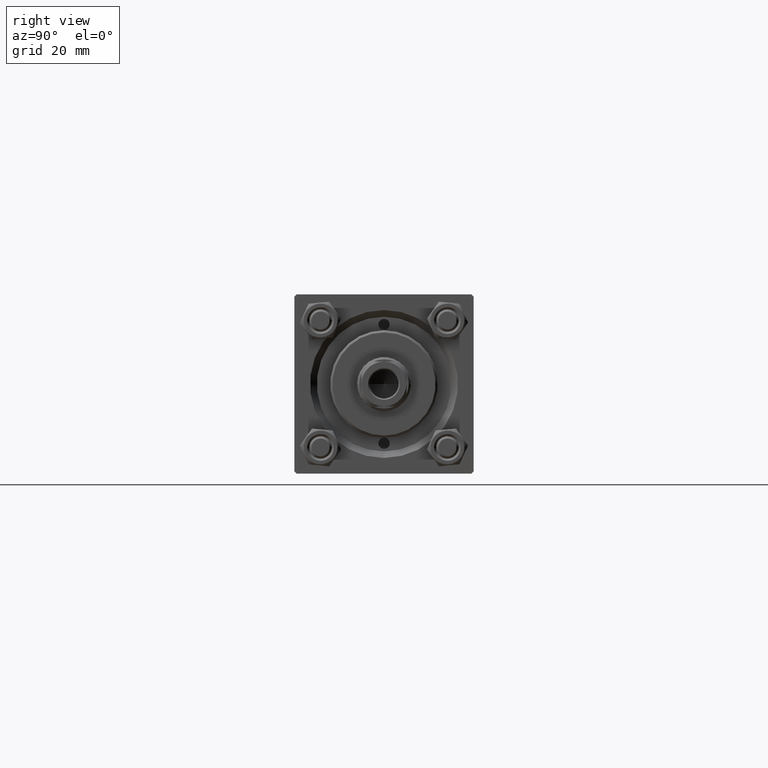
[diagram: clean part render]
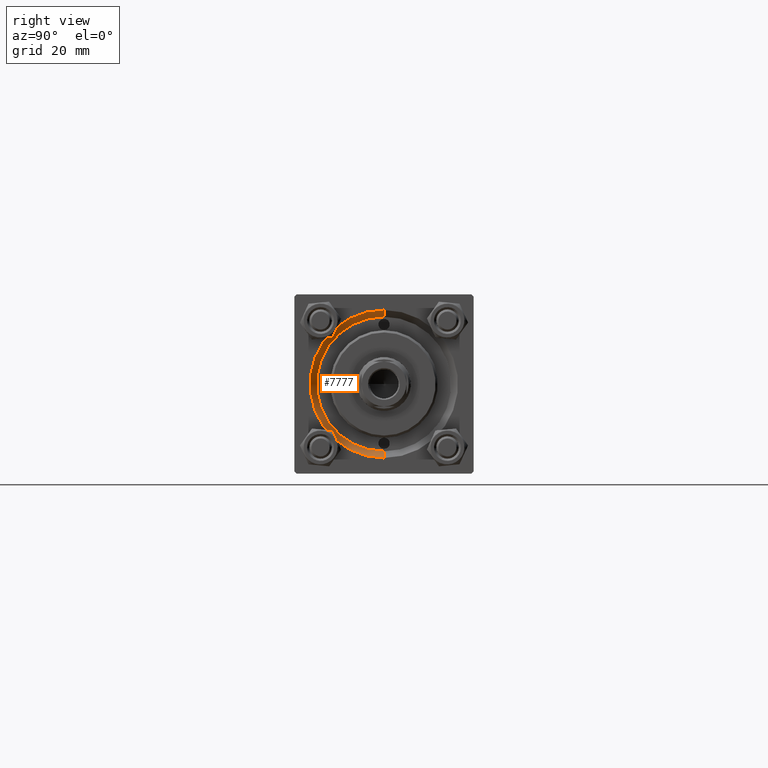
[diagram: same view with one face highlighted and labeled with its STEP entity id]
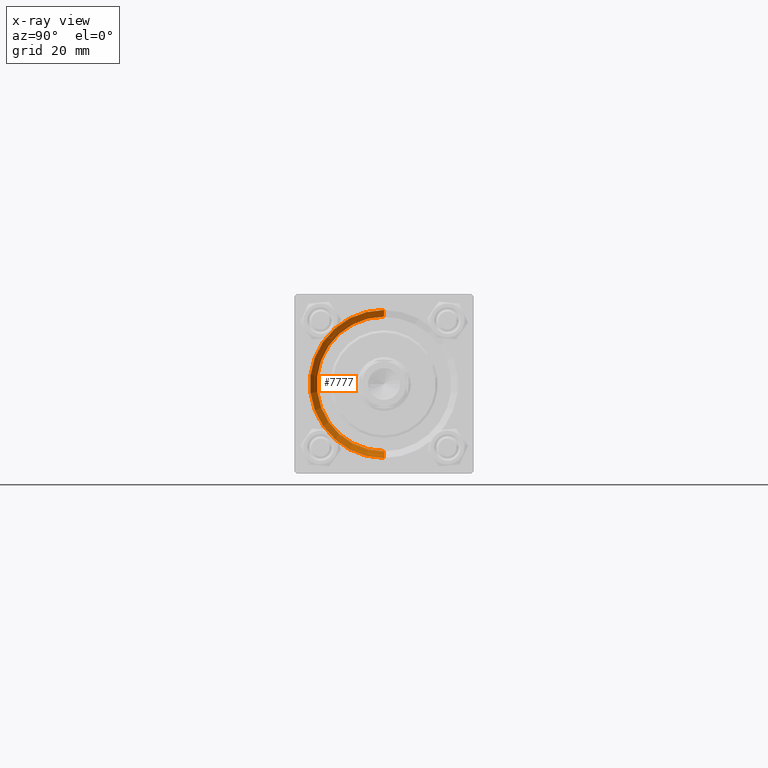
[diagram: x-ray of the same camera — body ghosted, the highlighted face saturated]
A machine part, right view. The second image highlights one B-rep face of the part: STEP entity #7777.
The next image is the same camera in x-ray: the body ghosted, the highlighted face saturated — about 0% of this face is hidden behind the body in this view.
In plain terms, the highlighted conical surface has half-angle 45 deg.
Its self-contained STEP definition (entity closure, byte-faithful):
#206 = CIRCLE ( 'NONE', #26023, 16.50000000000001421 ) ;
#527 = EDGE_CURVE ( 'NONE', #8945, #36079, #206, .T. ) ;
#3371 = DIRECTION ( 'NONE',  ( 0.7071067811865474617, 8.659560562354932858E-17, 0.7071067811865474617 ) ) ;
#6053 = CARTESIAN_POINT ( 'NONE',  ( 117.5000000000000000, 0.000000000000000000, -15.00000000000000000 ) ) ;
#6214 = CARTESIAN_POINT ( 'NONE',  ( 117.5000000000000000, 0.000000000000000000, 0.000000000000000000 ) ) ;
#6705 = DIRECTION ( 'NONE',  ( 1.000000000000000000, 0.000000000000000000, 0.000000000000000000 ) ) ;
#6909 = CARTESIAN_POINT ( 'NONE',  ( 117.5000000000000000, 1.836970198721029589E-15, 15.00000000000000000 ) ) ;
#7029 = LINE ( 'NONE', #33817, #16435 ) ;
#7777 = ADVANCED_FACE ( 'NONE', ( #25420 ), #13653, .F. ) ;
#7780 = EDGE_CURVE ( 'NONE', #48233, #49880, #33014, .T. ) ;
#8945 = VERTEX_POINT ( 'NONE', #24874 ) ;
#9204 = EDGE_CURVE ( 'NONE', #48233, #36079, #30897, .T. ) ;
#9636 = AXIS2_PLACEMENT_3D ( 'NONE', #33992, #6705, #17582 ) ;
#11364 = ORIENTED_EDGE ( 'NONE', *, *, #7780, .F. ) ;
#13653 = CONICAL_SURFACE ( 'NONE', #9636, 15.00000000000000000, 0.7853981633974482790 ) ;
#14734 = EDGE_LOOP ( 'NONE', ( #11364, #16460, #49621, #45178 ) ) ;
#16435 = VECTOR ( 'NONE', #22427, 1000.000000000000114 ) ;
#16460 = ORIENTED_EDGE ( 'NONE', *, *, #9204, .T. ) ;
#17582 = DIRECTION ( 'NONE',  ( 0.000000000000000000, 0.000000000000000000, -1.000000000000000000 ) ) ;
#21612 = DIRECTION ( 'NONE',  ( 1.000000000000000000, 0.000000000000000000, 0.000000000000000000 ) ) ;
#22427 = DIRECTION ( 'NONE',  ( 0.7071067811865474617, 0.000000000000000000, -0.7071067811865474617 ) ) ;
#22437 = CARTESIAN_POINT ( 'NONE',  ( 119.0000000000000142, 0.000000000000000000, 0.000000000000000000 ) ) ;
#24874 = CARTESIAN_POINT ( 'NONE',  ( 119.0000000000000142, 0.000000000000000000, -16.50000000000001421 ) ) ;
#25418 = CARTESIAN_POINT ( 'NONE',  ( 119.0000000000000142, 2.020667218593134678E-15, 16.50000000000001421 ) ) ;
#25420 = FACE_OUTER_BOUND ( 'NONE', #14734, .T. ) ;
#26023 = AXIS2_PLACEMENT_3D ( 'NONE', #22437, #29288, #37123 ) ;
#28167 = AXIS2_PLACEMENT_3D ( 'NONE', #6214, #21612, #41823 ) ;
#29288 = DIRECTION ( 'NONE',  ( -1.000000000000000000, -0.000000000000000000, -0.000000000000000000 ) ) ;
#30897 = LINE ( 'NONE', #6909, #34664 ) ;
#33014 = CIRCLE ( 'NONE', #28167, 15.00000000000000000 ) ;
#33817 = CARTESIAN_POINT ( 'NONE',  ( 117.5000000000000000, 0.000000000000000000, -15.00000000000000000 ) ) ;
#33992 = CARTESIAN_POINT ( 'NONE',  ( 117.5000000000000000, 0.000000000000000000, 0.000000000000000000 ) ) ;
#34664 = VECTOR ( 'NONE', #3371, 1000.000000000000114 ) ;
#36079 = VERTEX_POINT ( 'NONE', #25418 ) ;
#37123 = DIRECTION ( 'NONE',  ( 0.000000000000000000, 0.000000000000000000, 1.000000000000000000 ) ) ;
#38348 = CARTESIAN_POINT ( 'NONE',  ( 117.5000000000000000, 1.836970198721029589E-15, 15.00000000000000000 ) ) ;
#41823 = DIRECTION ( 'NONE',  ( 0.000000000000000000, 0.000000000000000000, 1.000000000000000000 ) ) ;
#45178 = ORIENTED_EDGE ( 'NONE', *, *, #49160, .F. ) ;
#48233 = VERTEX_POINT ( 'NONE', #38348 ) ;
#49160 = EDGE_CURVE ( 'NONE', #49880, #8945, #7029, .T. ) ;
#49621 = ORIENTED_EDGE ( 'NONE', *, *, #527, .F. ) ;
#49880 = VERTEX_POINT ( 'NONE', #6053 ) ;